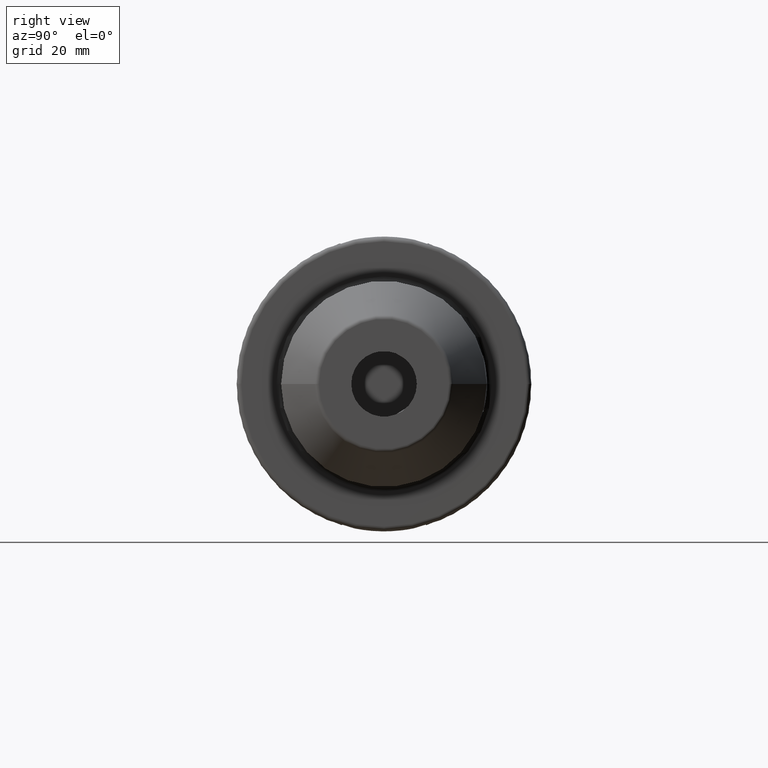
[diagram: clean part render]
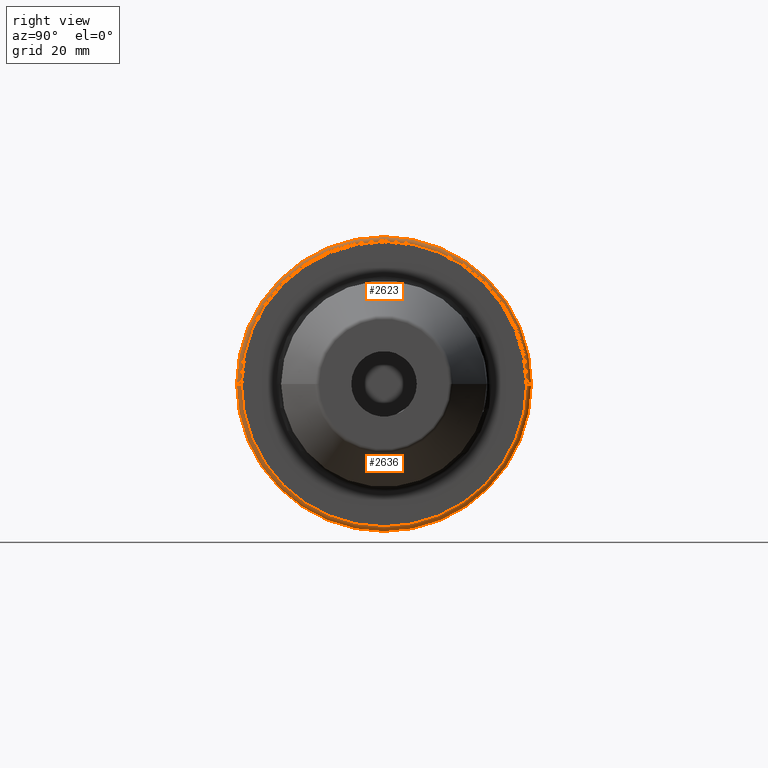
[diagram: same view with one multi-face feature highlighted, each face labeled with its STEP entity id]
A machine part, right view. The highlighted faces form ONE feature: a constant-radius fillet chain: 2 tangent blend faces with common blend radius 1 mm. The faces share edges in the B-rep.
Their STEP definitions:
[1] entity #2623 (Torus):
#792=CARTESIAN_POINT('',(2.6E1,0.E0,0.E0));
#793=DIRECTION('',(1.E0,0.E0,0.E0));
#794=DIRECTION('',(0.E0,1.E0,0.E0));
#795=AXIS2_PLACEMENT_3D('',#792,#793,#794);
#816=CARTESIAN_POINT('',(2.7E1,0.E0,0.E0));
#817=DIRECTION('',(1.E0,0.E0,0.E0));
#818=DIRECTION('',(0.E0,1.E0,0.E0));
#819=AXIS2_PLACEMENT_3D('',#816,#817,#818);
#821=CARTESIAN_POINT('',(2.6E1,3.04875E1,0.E0));
#822=DIRECTION('',(0.E0,0.E0,1.E0));
#823=DIRECTION('',(1.E0,0.E0,0.E0));
#824=AXIS2_PLACEMENT_3D('',#821,#822,#823);
#826=CARTESIAN_POINT('',(2.6E1,-3.04875E1,0.E0));
#827=DIRECTION('',(0.E0,0.E0,-1.E0));
#828=DIRECTION('',(1.E0,0.E0,0.E0));
#829=AXIS2_PLACEMENT_3D('',#826,#827,#828);
#1358=CARTESIAN_POINT('',(2.6E1,3.14875E1,0.E0));
#1359=VERTEX_POINT('',#1358);
#1360=CARTESIAN_POINT('',(2.6E1,-3.14875E1,0.E0));
#1361=VERTEX_POINT('',#1360);
#1428=CARTESIAN_POINT('',(2.7E1,3.04875E1,0.E0));
#1429=VERTEX_POINT('',#1428);
#1430=CARTESIAN_POINT('',(2.7E1,-3.04875E1,0.E0));
#1431=VERTEX_POINT('',#1430);
#2609=CARTESIAN_POINT('',(2.6E1,0.E0,0.E0));
#2610=DIRECTION('',(1.E0,0.E0,0.E0));
#2611=DIRECTION('',(0.E0,-1.E0,0.E0));
#2612=AXIS2_PLACEMENT_3D('',#2609,#2610,#2611);
#2613=TOROIDAL_SURFACE('',#2612,3.04875E1,1.E0);
#2615=ORIENTED_EDGE('',*,*,#2614,.F.);
#2617=ORIENTED_EDGE('',*,*,#2616,.T.);
#2619=ORIENTED_EDGE('',*,*,#2618,.T.);
#2620=ORIENTED_EDGE('',*,*,#2600,.F.);
#2621=EDGE_LOOP('',(#2615,#2617,#2619,#2620));
#2622=FACE_OUTER_BOUND('',#2621,.F.);
#2623=ADVANCED_FACE('',(#2622),#2613,.T.);
#796=CIRCLE('',#795,3.14875E1);
#820=CIRCLE('',#819,3.04875E1);
#825=CIRCLE('',#824,1.E0);
#830=CIRCLE('',#829,1.E0);
#2600=EDGE_CURVE('',#1359,#1361,#796,.T.);
#2614=EDGE_CURVE('',#1429,#1359,#825,.T.);
#2616=EDGE_CURVE('',#1429,#1431,#820,.T.);
#2618=EDGE_CURVE('',#1431,#1361,#830,.T.);
[2] entity #2636 (Torus):
#255=CARTESIAN_POINT('',(2.6E1,0.E0,0.E0));
#256=DIRECTION('',(-1.E0,0.E0,0.E0));
#257=DIRECTION('',(0.E0,1.E0,0.E0));
#258=AXIS2_PLACEMENT_3D('',#255,#256,#257);
#821=CARTESIAN_POINT('',(2.6E1,3.04875E1,0.E0));
#822=DIRECTION('',(0.E0,0.E0,1.E0));
#823=DIRECTION('',(1.E0,0.E0,0.E0));
#824=AXIS2_PLACEMENT_3D('',#821,#822,#823);
#826=CARTESIAN_POINT('',(2.6E1,-3.04875E1,0.E0));
#827=DIRECTION('',(0.E0,0.E0,-1.E0));
#828=DIRECTION('',(1.E0,0.E0,0.E0));
#829=AXIS2_PLACEMENT_3D('',#826,#827,#828);
#831=CARTESIAN_POINT('',(2.7E1,0.E0,0.E0));
#832=DIRECTION('',(-1.E0,0.E0,0.E0));
#833=DIRECTION('',(0.E0,1.E0,0.E0));
#834=AXIS2_PLACEMENT_3D('',#831,#832,#833);
#1358=CARTESIAN_POINT('',(2.6E1,3.14875E1,0.E0));
#1359=VERTEX_POINT('',#1358);
#1360=CARTESIAN_POINT('',(2.6E1,-3.14875E1,0.E0));
#1361=VERTEX_POINT('',#1360);
#1428=CARTESIAN_POINT('',(2.7E1,3.04875E1,0.E0));
#1429=VERTEX_POINT('',#1428);
#1430=CARTESIAN_POINT('',(2.7E1,-3.04875E1,0.E0));
#1431=VERTEX_POINT('',#1430);
#2624=CARTESIAN_POINT('',(2.6E1,0.E0,0.E0));
#2625=DIRECTION('',(1.E0,0.E0,0.E0));
#2626=DIRECTION('',(0.E0,-1.E0,0.E0));
#2627=AXIS2_PLACEMENT_3D('',#2624,#2625,#2626);
#2628=TOROIDAL_SURFACE('',#2627,3.04875E1,1.E0);
#2629=ORIENTED_EDGE('',*,*,#2614,.T.);
#2630=ORIENTED_EDGE('',*,*,#1891,.T.);
#2631=ORIENTED_EDGE('',*,*,#2618,.F.);
#2633=ORIENTED_EDGE('',*,*,#2632,.F.);
#2634=EDGE_LOOP('',(#2629,#2630,#2631,#2633));
#2635=FACE_OUTER_BOUND('',#2634,.F.);
#2636=ADVANCED_FACE('',(#2635),#2628,.T.);
#259=CIRCLE('',#258,3.14875E1);
#825=CIRCLE('',#824,1.E0);
#830=CIRCLE('',#829,1.E0);
#835=CIRCLE('',#834,3.04875E1);
#1891=EDGE_CURVE('',#1359,#1361,#259,.T.);
#2614=EDGE_CURVE('',#1429,#1359,#825,.T.);
#2618=EDGE_CURVE('',#1431,#1361,#830,.T.);
#2632=EDGE_CURVE('',#1429,#1431,#835,.T.);